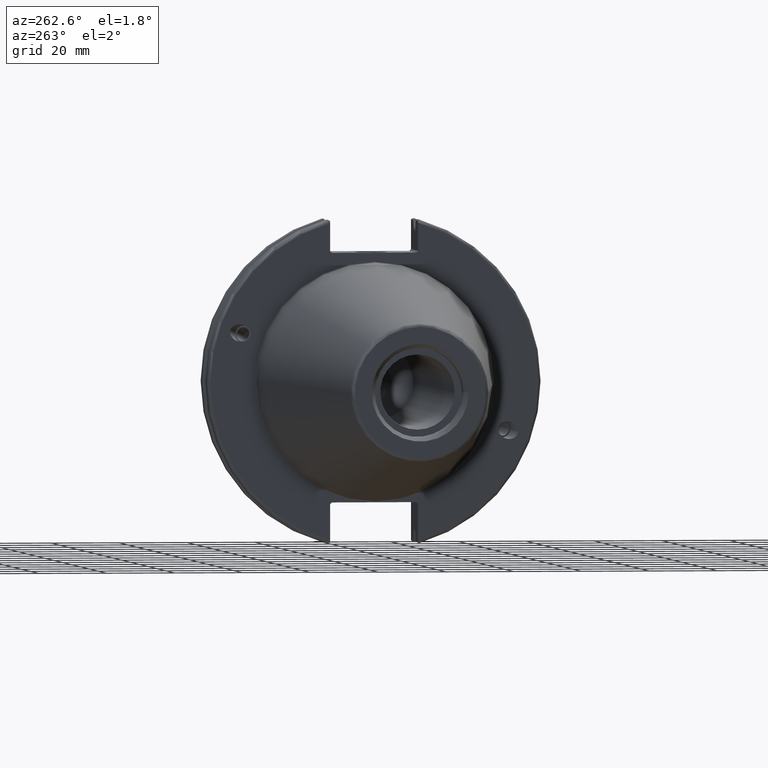
[diagram: clean part render]
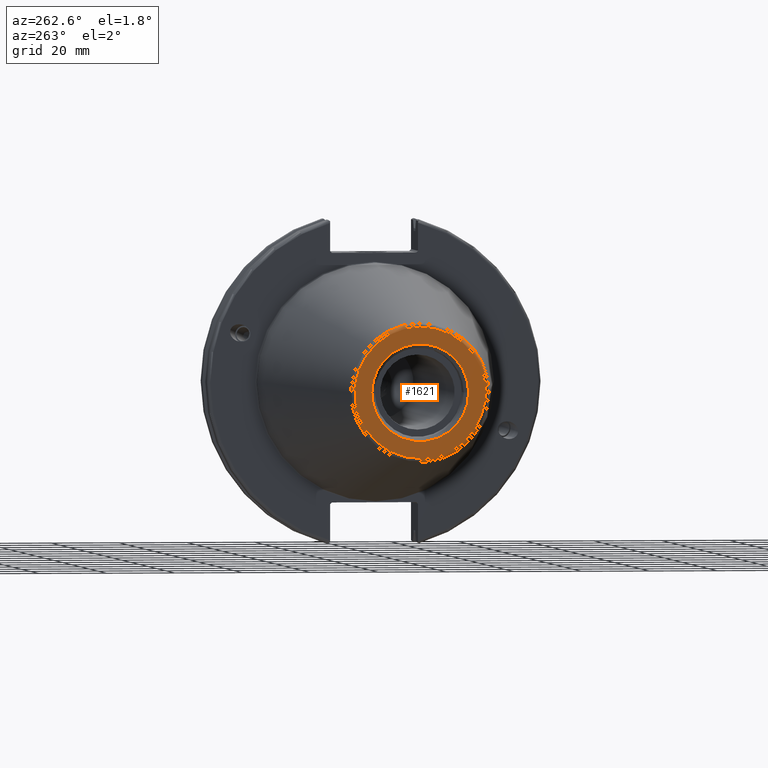
[diagram: same view with one face highlighted and labeled with its STEP entity id]
A machine part, auxiliary view. The second image highlights one B-rep face of the part: STEP entity #1621.
In plain terms, the highlighted planar face has unit normal (-1, 0, 0).
Its self-contained STEP definition (entity closure, byte-faithful):
#74=FACE_BOUND('',#358,.T.);
#142=CIRCLE('',#1801,19.2435889303637);
#143=CIRCLE('',#1803,14.2875);
#175=PLANE('',#1802);
#250=FACE_OUTER_BOUND('',#357,.T.);
#357=EDGE_LOOP('',(#1402));
#358=EDGE_LOOP('',(#1403));
#790=VERTEX_POINT('',#3366);
#791=VERTEX_POINT('',#3370);
#1012=EDGE_CURVE('',#790,#790,#142,.T.);
#1013=EDGE_CURVE('',#791,#791,#143,.T.);
#1402=ORIENTED_EDGE('',*,*,#1012,.F.);
#1403=ORIENTED_EDGE('',*,*,#1013,.T.);
#1621=ADVANCED_FACE('',(#250,#74),#175,.T.);
#1801=AXIS2_PLACEMENT_3D('',#3368,#2179,#2180);
#1802=AXIS2_PLACEMENT_3D('',#3369,#2181,#2182);
#1803=AXIS2_PLACEMENT_3D('',#3371,#2183,#2184);
#2179=DIRECTION('center_axis',(1.,0.,0.));
#2180=DIRECTION('ref_axis',(0.,-1.,1.83697019872103E-16));
#2181=DIRECTION('center_axis',(-1.,0.,0.));
#2182=DIRECTION('ref_axis',(0.,0.,1.));
#2183=DIRECTION('center_axis',(1.,0.,0.));
#2184=DIRECTION('ref_axis',(0.,0.,-1.));
#3366=CARTESIAN_POINT('',(-101.6,-2.35665995876774E-15,19.2435889303637));
#3368=CARTESIAN_POINT('Origin',(-101.6,0.,0.));
#3369=CARTESIAN_POINT('Origin',(-101.6,20.1083333333333,0.));
#3370=CARTESIAN_POINT('',(-101.6,-14.2875,-1.74971411428178E-15));
#3371=CARTESIAN_POINT('Origin',(-101.6,0.,0.));